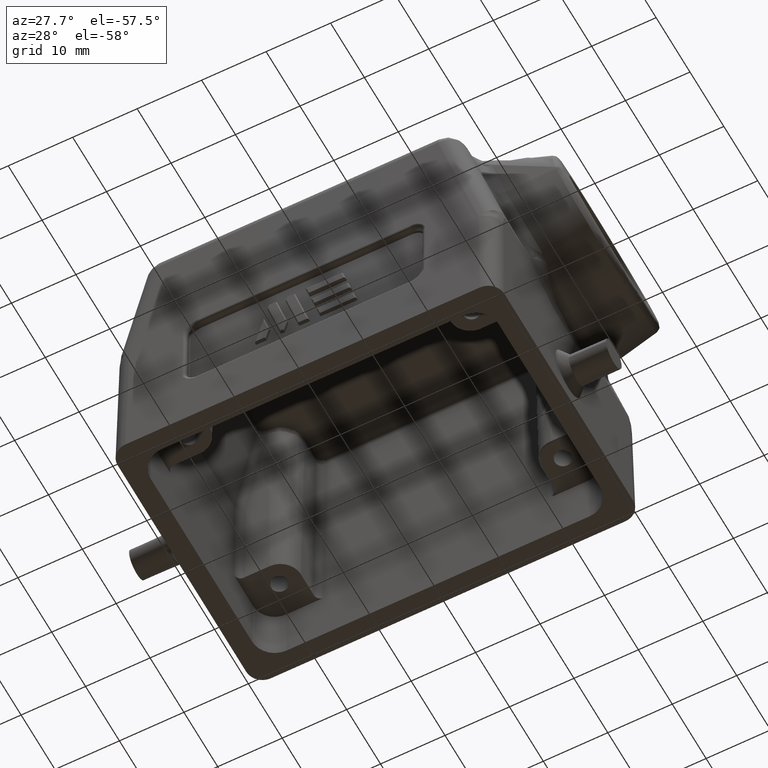
[diagram: clean part render]
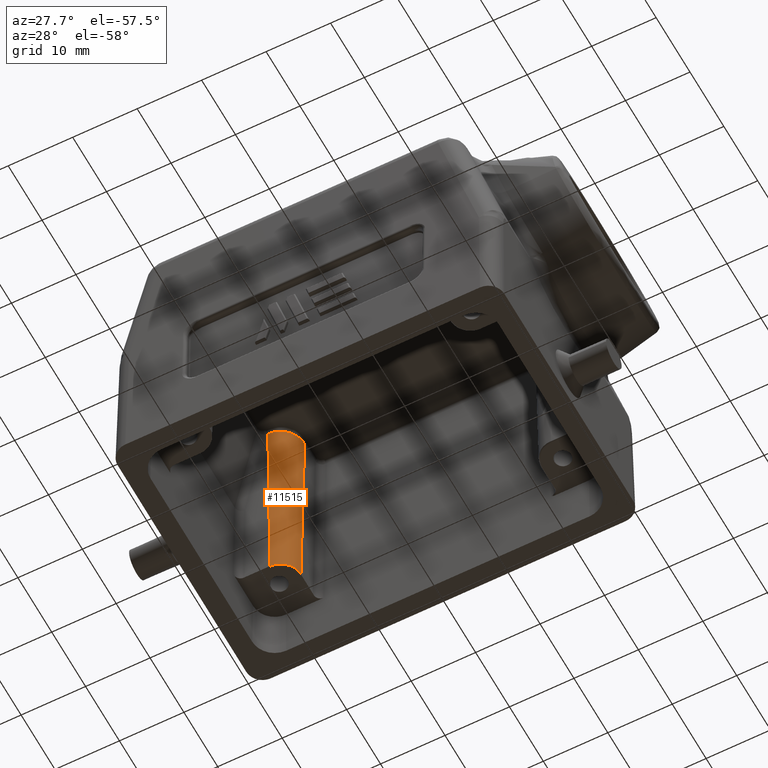
[diagram: same view with one face highlighted and labeled with its STEP entity id]
A machine part, auxiliary view. The second image highlights one B-rep face of the part: STEP entity #11515.
In plain terms, the highlighted conical surface has half-angle 1 deg.
Its self-contained STEP definition (entity closure, byte-faithful):
#259 = CARTESIAN_POINT ( 'NONE',  ( 0.3307086614492594778, 0.4072009612493923125, 0.3543307086619902346 ) ) ;
#334 = ORIENTED_EDGE ( 'NONE', *, *, #4018, .T. ) ;
#403 = LINE ( 'NONE', #1528, #10730 ) ;
#1256 = VERTEX_POINT ( 'NONE', #9430 ) ;
#1528 = CARTESIAN_POINT ( 'NONE',  ( 0.4488188976697323196, 0.5314960629921260393, 0.000000000000000000 ) ) ;
#1655 = FACE_OUTER_BOUND ( 'NONE', #5552, .T. ) ;
#2017 = CIRCLE ( 'NONE', #7808, 0.1242951017391933227 ) ;
#2424 = DIRECTION ( 'NONE',  ( -1.000000000000000000, 0.000000000000000000, 0.000000000000000000 ) ) ;
#2428 = CARTESIAN_POINT ( 'NONE',  ( 0.3307086614511424161, -342.5030468199149141, 19645.66929133858503 ) ) ;
#3181 = VERTEX_POINT ( 'NONE', #259 ) ;
#3425 = EDGE_CURVE ( 'NONE', #9311, #12334, #403, .T. ) ;
#3426 = LINE ( 'NONE', #2428, #11668 ) ;
#3453 = DIRECTION ( 'NONE',  ( -0.000000000000000000, 0.000000000000000000, 1.000000000000000000 ) ) ;
#3851 = CARTESIAN_POINT ( 'NONE',  ( 0.4550037631954830797, 0.5314960629921260393, 0.3543307086617037971 ) ) ;
#4018 = EDGE_CURVE ( 'NONE', #12334, #1256, #4318, .T. ) ;
#4318 = CIRCLE ( 'NONE', #9670, 0.1469849353951209747 ) ;
#4534 = DIRECTION ( 'NONE',  ( 1.000000000000000000, 0.000000000000000000, 0.000000000000000000 ) ) ;
#4839 = AXIS2_PLACEMENT_3D ( 'NONE', #7751, #3453, #12832 ) ;
#5542 = CARTESIAN_POINT ( 'NONE',  ( 0.3307086614492590892, 0.5314960629921260393, 0.3543307086619902346 ) ) ;
#5552 = EDGE_LOOP ( 'NONE', ( #8466, #7511, #9620, #334 ) ) ;
#7327 = DIRECTION ( 'NONE',  ( -9.581166551543068999E-17, 0.01745240641734325387, -0.9998476951567392135 ) ) ;
#7511 = ORIENTED_EDGE ( 'NONE', *, *, #10143, .T. ) ;
#7751 = CARTESIAN_POINT ( 'NONE',  ( 0.3307086614492590892, 0.5314960629921260393, 1.654230409701271887 ) ) ;
#7808 = AXIS2_PLACEMENT_3D ( 'NONE', #5542, #9628, #4534 ) ;
#8266 = DIRECTION ( 'NONE',  ( -0.000000000000000000, -0.000000000000000000, -1.000000000000000000 ) ) ;
#8466 = ORIENTED_EDGE ( 'NONE', *, *, #9571, .T. ) ;
#9311 = VERTEX_POINT ( 'NONE', #3851 ) ;
#9341 = CONICAL_SURFACE ( 'NONE', #4839, 0.1469849353950510307, 0.01745329249998354981 ) ;
#9430 = CARTESIAN_POINT ( 'NONE',  ( 0.3307086614492599774, 0.3845111275805536688, 1.654230409702323490 ) ) ;
#9571 = EDGE_CURVE ( 'NONE', #1256, #3181, #3426, .T. ) ;
#9620 = ORIENTED_EDGE ( 'NONE', *, *, #3425, .T. ) ;
#9628 = DIRECTION ( 'NONE',  ( -0.000000000000000000, 0.000000000000000000, 1.000000000000000000 ) ) ;
#9670 = AXIS2_PLACEMENT_3D ( 'NONE', #11591, #8266, #2424 ) ;
#10143 = EDGE_CURVE ( 'NONE', #3181, #9311, #2017, .T. ) ;
#10558 = CARTESIAN_POINT ( 'NONE',  ( 0.4776935968690823597, 0.5314960629921260393, 1.654230409702569737 ) ) ;
#10730 = VECTOR ( 'NONE', #12578, 39.37007874015748143 ) ;
#11515 = ADVANCED_FACE ( 'NONE', ( #1655 ), #9341, .T. ) ;
#11591 = CARTESIAN_POINT ( 'NONE',  ( 0.3307086614492590892, 0.5314960629921260393, 1.654230409703509874 ) ) ;
#11668 = VECTOR ( 'NONE', #7327, 39.37007874015748143 ) ;
#12334 = VERTEX_POINT ( 'NONE', #10558 ) ;
#12578 = DIRECTION ( 'NONE',  ( 0.01745240643728350471, 0.000000000000000000, 0.9998476951563912696 ) ) ;
#12832 = DIRECTION ( 'NONE',  ( 1.000000000000000000, 0.000000000000000000, 0.000000000000000000 ) ) ;